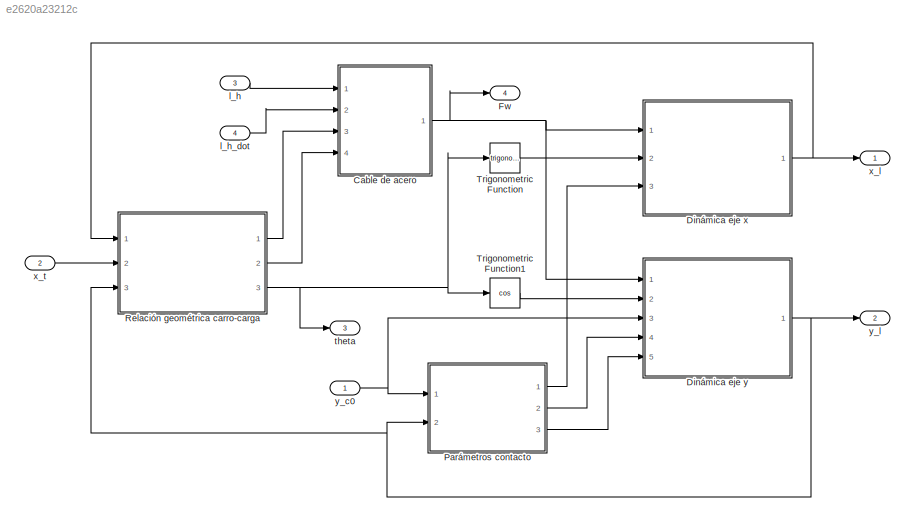
MODEL slx_e2620a23212c
KIND model
CONFIG AbsTol = auto
CONFIG EnableMultiTasking = off
CONFIG FixedStep = auto
CONFIG MaxStep = auto
CONFIG MinStep = auto
CONFIG RelTol = 1e-3
CONFIG SampleTimeConstraint = Unconstrained
CONFIG Solver = VariableStepAuto
CONFIG SolverName = VariableStepAuto
CONFIG StartTime = 0.0
CONFIG StopTime = 10.0
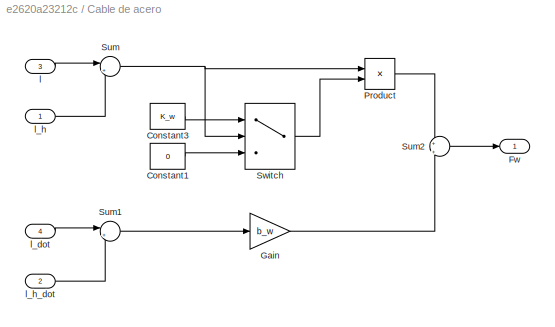
BLOCK [SubSystem] Cable de acero
  Ports = [4, 1]
  RequestExecContextInheritance = off
BLOCK [Constant] Cable de acero/Constant1
  Value = 0
BLOCK [Constant] Cable de acero/Constant3
  Value = K_w
BLOCK [Outport] Cable de acero/Fw
  IconDisplay = Port number
BLOCK [Gain] Cable de acero/Gain
  Gain = b_w
  OutDataTypeStr = Inherit: Inherit via internal rule
  ParamDataTypeStr = Inherit: Inherit via internal rule
  SaturateOnIntegerOverflow = off
BLOCK [Product] Cable de acero/Product
  InputSameDT = off
  OutDataTypeStr = Inherit: Inherit via internal rule
  Ports = [2, 1]
  RndMeth = Floor
  SaturateOnIntegerOverflow = off
BLOCK [Sum] Cable de acero/Sum
  IconShape = round
  InputSameDT = off
  Inputs = |+-
  OutDataTypeStr = Inherit: Inherit via internal rule
  Ports = [2, 1]
  SaturateOnIntegerOverflow = off
BLOCK [Sum] Cable de acero/Sum1
  IconShape = round
  InputSameDT = off
  Inputs = |+-
  OutDataTypeStr = Inherit: Inherit via internal rule
  Ports = [2, 1]
  SaturateOnIntegerOverflow = off
BLOCK [Sum] Cable de acero/Sum2
  IconShape = round
  InputSameDT = off
  Inputs = +|+
  OutDataTypeStr = Inherit: Inherit via internal rule
  Ports = [2, 1]
  SaturateOnIntegerOverflow = off
BLOCK [Switch] Cable de acero/Switch
  InputSameDT = off
  SaturateOnIntegerOverflow = off
BLOCK [Inport] Cable de acero/l
  IconDisplay = Port number
  OutDataTypeStr = double
  Port = 3
  PortDimensions = 1
  SampleTime = 0
  SamplingMode = Sample based
  SignalType = real
BLOCK [Inport] Cable de acero/l_dot
  IconDisplay = Port number
  OutDataTypeStr = double
  Port = 4
  PortDimensions = 1
  SampleTime = 0
  SamplingMode = Sample based
  SignalType = real
BLOCK [Inport] Cable de acero/l_h
  IconDisplay = Port number
  OutDataTypeStr = double
  PortDimensions = 1
  SampleTime = 0
  SamplingMode = Sample based
  SignalType = real
BLOCK [Inport] Cable de acero/l_h_dot
  IconDisplay = Port number
  OutDataTypeStr = double
  Port = 2
  PortDimensions = 1
  SampleTime = 0
  SamplingMode = Sample based
  SignalType = real
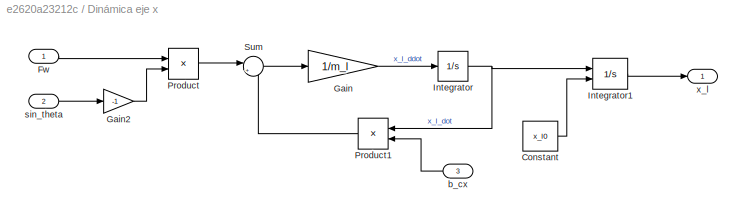
BLOCK [SubSystem] Dinámica eje x
  Ports = [3, 1]
  RequestExecContextInheritance = off
BLOCK [Constant] Dinámica eje x/Constant
  Value = x_l0
BLOCK [Inport] Dinámica eje x/Fw
  IconDisplay = Port number
  OutDataTypeStr = double
  PortDimensions = 1
  SampleTime = 0
  SamplingMode = Sample based
  SignalType = real
BLOCK [Gain] Dinámica eje x/Gain
  Gain = 1/m_l
  OutDataTypeStr = Inherit: Inherit via internal rule
  ParamDataTypeStr = Inherit: Inherit via internal rule
  SaturateOnIntegerOverflow = off
BLOCK [Gain] Dinámica eje x/Gain2
  Gain = -1
  OutDataTypeStr = Inherit: Inherit via internal rule
  ParamDataTypeStr = Inherit: Inherit via internal rule
  SaturateOnIntegerOverflow = off
BLOCK [Integrator] Dinámica eje x/Integrator
  Ports = [1, 1]
BLOCK [Integrator] Dinámica eje x/Integrator1
  InitialConditionSource = external
  Ports = [2, 1]
BLOCK [Product] Dinámica eje x/Product
  InputSameDT = off
  OutDataTypeStr = Inherit: Inherit via internal rule
  Ports = [2, 1]
  RndMeth = Floor
  SaturateOnIntegerOverflow = off
BLOCK [Product] Dinámica eje x/Product1
  InputSameDT = off
  OutDataTypeStr = Inherit: Inherit via internal rule
  Ports = [2, 1]
  RndMeth = Floor
  SaturateOnIntegerOverflow = off
BLOCK [Sum] Dinámica eje x/Sum
  IconShape = round
  InputSameDT = off
  Inputs = |+-
  OutDataTypeStr = Inherit: Inherit via internal rule
  Ports = [2, 1]
  SaturateOnIntegerOverflow = off
BLOCK [Inport] Dinámica eje x/b_cx
  IconDisplay = Port number
  OutDataTypeStr = double
  Port = 3
  PortDimensions = 1
  SampleTime = 0
  SamplingMode = Sample based
  SignalType = real
BLOCK [Inport] Dinámica eje x/sin_theta
  IconDisplay = Port number
  OutDataTypeStr = double
  Port = 2
  PortDimensions = 1
  SampleTime = 0
  SamplingMode = Sample based
  SignalType = real
BLOCK [Outport] Dinámica eje x/x_l
  IconDisplay = Port number
  OutDataTypeStr = double
  PortDimensions = 1
  SampleTime = 0
  SamplingMode = Sample based
  SignalType = real
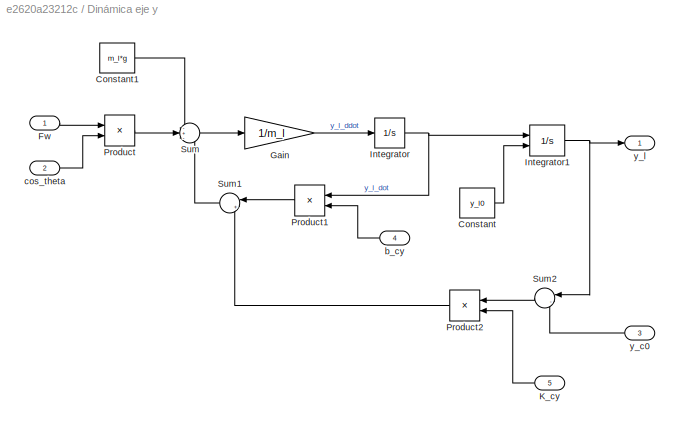
BLOCK [SubSystem] Dinámica eje y
  Ports = [5, 1]
  RequestExecContextInheritance = off
BLOCK [Constant] Dinámica eje y/Constant
  Value = y_l0
BLOCK [Constant] Dinámica eje y/Constant1
  Value = m_l*g
BLOCK [Inport] Dinámica eje y/Fw
  IconDisplay = Port number
  OutDataTypeStr = double
  PortDimensions = 1
  SampleTime = 0
  SamplingMode = Sample based
  SignalType = real
BLOCK [Gain] Dinámica eje y/Gain
  Gain = 1/m_l
  OutDataTypeStr = Inherit: Inherit via internal rule
  ParamDataTypeStr = Inherit: Inherit via internal rule
  SaturateOnIntegerOverflow = off
BLOCK [Integrator] Dinámica eje y/Integrator
  Ports = [1, 1]
BLOCK [Integrator] Dinámica eje y/Integrator1
  InitialConditionSource = external
  Ports = [2, 1]
BLOCK [Inport] Dinámica eje y/K_cy
  IconDisplay = Port number
  OutDataTypeStr = double
  Port = 5
  PortDimensions = 1
  SampleTime = 0
  SamplingMode = Sample based
  SignalType = real
BLOCK [Product] Dinámica eje y/Product
  InputSameDT = off
  OutDataTypeStr = Inherit: Inherit via internal rule
  Ports = [2, 1]
  RndMeth = Floor
  SaturateOnIntegerOverflow = off
BLOCK [Product] Dinámica eje y/Product1
  InputSameDT = off
  OutDataTypeStr = Inherit: Inherit via internal rule
  Ports = [2, 1]
  RndMeth = Floor
  SaturateOnIntegerOverflow = off
BLOCK [Product] Dinámica eje y/Product2
  InputSameDT = off
  OutDataTypeStr = Inherit: Inherit via internal rule
  Ports = [2, 1]
  RndMeth = Floor
  SaturateOnIntegerOverflow = off
BLOCK [Sum] Dinámica eje y/Sum
  IconShape = round
  InputSameDT = off
  Inputs = -+-
  OutDataTypeStr = Inherit: Inherit via internal rule
  Ports = [3, 1]
  SaturateOnIntegerOverflow = off
BLOCK [Sum] Dinámica eje y/Sum1
  IconShape = round
  InputSameDT = off
  Inputs = |+-
  OutDataTypeStr = Inherit: Inherit via internal rule
  Ports = [2, 1]
  SaturateOnIntegerOverflow = off
BLOCK [Sum] Dinámica eje y/Sum2
  IconShape = round
  InputSameDT = off
  Inputs = |-+
  OutDataTypeStr = Inherit: Inherit via internal rule
  Ports = [2, 1]
  SaturateOnIntegerOverflow = off
BLOCK [Inport] Dinámica eje y/b_cy
  IconDisplay = Port number
  OutDataTypeStr = double
  Port = 4
  PortDimensions = 1
  SampleTime = 0
  SamplingMode = Sample based
  SignalType = real
BLOCK [Inport] Dinámica eje y/cos_theta
  IconDisplay = Port number
  OutDataTypeStr = double
  Port = 2
  PortDimensions = 1
  SampleTime = 0
  SamplingMode = Sample based
  SignalType = real
BLOCK [Inport] Dinámica eje y/y_c0
  IconDisplay = Port number
  OutDataTypeStr = double
  Port = 3
  PortDimensions = 1
  SampleTime = 0
  SamplingMode = Sample based
  SignalType = real
BLOCK [Outport] Dinámica eje y/y_l
  IconDisplay = Port number
  OutDataTypeStr = double
  PortDimensions = 1
  SampleTime = 0
  SamplingMode = Sample based
  SignalType = real
BLOCK [Outport] Fw
  IconDisplay = Port number
  OutDataTypeStr = double
  Port = 4
  PortDimensions = 1
  SampleTime = 0
  SamplingMode = Sample based
  SignalType = real
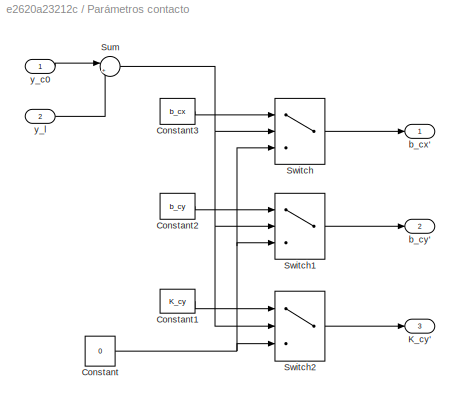
BLOCK [SubSystem] Parámetros contacto
  Ports = [2, 3]
  RequestExecContextInheritance = off
BLOCK [Constant] Parámetros contacto/Constant
  Value = 0
BLOCK [Constant] Parámetros contacto/Constant1
  Value = K_cy
BLOCK [Constant] Parámetros contacto/Constant2
  Value = b_cy
BLOCK [Constant] Parámetros contacto/Constant3
  Value = b_cx
BLOCK [Outport] Parámetros contacto/K_cy'
  IconDisplay = Port number
  OutDataTypeStr = double
  Port = 3
  PortDimensions = 1
  SampleTime = 0
  SamplingMode = Sample based
  SignalType = real
BLOCK [Sum] Parámetros contacto/Sum
  IconShape = round
  InputSameDT = off
  Inputs = |+-
  OutDataTypeStr = Inherit: Inherit via internal rule
  Ports = [2, 1]
  SaturateOnIntegerOverflow = off
BLOCK [Switch] Parámetros contacto/Switch
  InputSameDT = off
  SaturateOnIntegerOverflow = off
BLOCK [Switch] Parámetros contacto/Switch1
  InputSameDT = off
  SaturateOnIntegerOverflow = off
BLOCK [Switch] Parámetros contacto/Switch2
  InputSameDT = off
  SaturateOnIntegerOverflow = off
BLOCK [Outport] Parámetros contacto/b_cx'
  IconDisplay = Port number
  OutDataTypeStr = double
  PortDimensions = 1
  SampleTime = 0
  SamplingMode = Sample based
  SignalType = real
BLOCK [Outport] Parámetros contacto/b_cy'
  IconDisplay = Port number
  OutDataTypeStr = double
  Port = 2
  PortDimensions = 1
  SampleTime = 0
  SamplingMode = Sample based
  SignalType = real
BLOCK [Inport] Parámetros contacto/y_c0
  IconDisplay = Port number
  OutDataTypeStr = double
  PortDimensions = 1
  SampleTime = 0
  SamplingMode = Sample based
  SignalType = real
BLOCK [Inport] Parámetros contacto/y_l
  IconDisplay = Port number
  OutDataTypeStr = double
  Port = 2
  PortDimensions = 1
  SampleTime = 0
  SamplingMode = Sample based
  SignalType = real
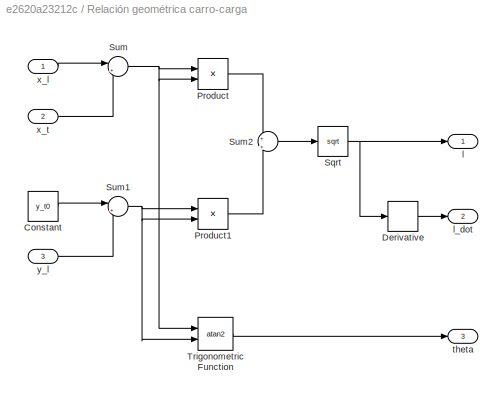
BLOCK [SubSystem] Relación geométrica carro-carga
  Ports = [3, 3]
  RequestExecContextInheritance = off
BLOCK [Constant] Relación geométrica carro-carga/Constant
  Value = y_t0
BLOCK [Derivative] Relación geométrica carro-carga/Derivative
BLOCK [Product] Relación geométrica carro-carga/Product
  InputSameDT = off
  OutDataTypeStr = Inherit: Inherit via internal rule
  Ports = [2, 1]
  RndMeth = Floor
  SaturateOnIntegerOverflow = off
BLOCK [Product] Relación geométrica carro-carga/Product1
  InputSameDT = off
  OutDataTypeStr = Inherit: Inherit via internal rule
  Ports = [2, 1]
  RndMeth = Floor
  SaturateOnIntegerOverflow = off
BLOCK [Sqrt] Relación geométrica carro-carga/Sqrt
BLOCK [Sum] Relación geométrica carro-carga/Sum
  IconShape = round
  InputSameDT = off
  Inputs = |+-
  OutDataTypeStr = Inherit: Inherit via internal rule
  Ports = [2, 1]
  SaturateOnIntegerOverflow = off
BLOCK [Sum] Relación geométrica carro-carga/Sum1
  IconShape = round
  InputSameDT = off
  Inputs = |+-
  OutDataTypeStr = Inherit: Inherit via internal rule
  Ports = [2, 1]
  SaturateOnIntegerOverflow = off
BLOCK [Sum] Relación geométrica carro-carga/Sum2
  IconShape = round
  InputSameDT = off
  Inputs = +|+
  OutDataTypeStr = Inherit: Inherit via internal rule
  Ports = [2, 1]
  SaturateOnIntegerOverflow = off
BLOCK [Trigonometry] Relación geométrica carro-carga/Trigonometric Function
  Operator = atan2
  Ports = [2, 1]
BLOCK [Outport] Relación geométrica carro-carga/l
  IconDisplay = Port number
BLOCK [Outport] Relación geométrica carro-carga/l_dot
  IconDisplay = Port number
  Port = 2
BLOCK [Outport] Relación geométrica carro-carga/theta
  IconDisplay = Port number
  Port = 3
BLOCK [Inport] Relación geométrica carro-carga/x_l
  IconDisplay = Port number
BLOCK [Inport] Relación geométrica carro-carga/x_t
  IconDisplay = Port number
  Port = 2
BLOCK [Inport] Relación geométrica carro-carga/y_l
  IconDisplay = Port number
  Port = 3
BLOCK [Trigonometry] Trigonometric Function
  Ports = [1, 1]
BLOCK [Trigonometry] Trigonometric Function1
  Operator = cos
  Ports = [1, 1]
BLOCK [Inport] l_h
  IconDisplay = Port number
  OutDataTypeStr = double
  Port = 3
  PortDimensions = 1
  SampleTime = 0
  SamplingMode = Sample based
  SignalType = real
BLOCK [Inport] l_h_dot
  IconDisplay = Port number
  OutDataTypeStr = double
  Port = 4
  PortDimensions = 1
  SampleTime = 0
  SamplingMode = Sample based
  SignalType = real
BLOCK [Outport] theta
  IconDisplay = Port number
  OutDataTypeStr = double
  Port = 3
  PortDimensions = 1
  SampleTime = 0
  SamplingMode = Sample based
  SignalType = real
BLOCK [Outport] x_l
  IconDisplay = Port number
  OutDataTypeStr = double
  PortDimensions = 1
  SampleTime = 0
  SamplingMode = Sample based
  SignalType = real
BLOCK [Inport] x_t
  IconDisplay = Port number
  OutDataTypeStr = double
  Port = 2
  PortDimensions = 1
  SampleTime = 0
  SamplingMode = Sample based
  SignalType = real
BLOCK [Inport] y_c0
  IconDisplay = Port number
  OutDataTypeStr = double
  PortDimensions = 1
  SampleTime = 0
  SamplingMode = Sample based
  SignalType = real
BLOCK [Outport] y_l
  IconDisplay = Port number
  OutDataTypeStr = double
  Port = 2
  PortDimensions = 1
  SampleTime = 0
  SamplingMode = Sample based
  SignalType = real
LINE Cable de acero/Constant1:1 -> Cable de acero/Switch:3
LINE Cable de acero/Constant3:1 -> Cable de acero/Switch:1
LINE Cable de acero/Gain:1 -> Cable de acero/Sum2:2
LINE Cable de acero/Product:1 -> Cable de acero/Sum2:1
LINE Cable de acero/Sum1:1 -> Cable de acero/Gain:1
LINE Cable de acero/Sum2:1 -> Cable de acero/Fw:1
NET Cable de acero/Sum:1 -> Cable de acero/Product:1, Cable de acero/Switch:2
LINE Cable de acero/Switch:1 -> Cable de acero/Product:2
LINE Cable de acero/l:1 -> Cable de acero/Sum:1
LINE Cable de acero/l_dot:1 -> Cable de acero/Sum1:1
LINE Cable de acero/l_h:1 -> Cable de acero/Sum:2
LINE Cable de acero/l_h_dot:1 -> Cable de acero/Sum1:2
NET Cable de acero:1 -> Dinámica eje x:1, Dinámica eje y:1, Fw:1
LINE Dinámica eje x/Constant:1 -> Dinámica eje x/Integrator1:2
LINE Dinámica eje x/Fw:1 -> Dinámica eje x/Product:1
LINE Dinámica eje x/Gain2:1 -> Dinámica eje x/Product:2
LINE Dinámica eje x/Gain:1 -> Dinámica eje x/Integrator:1
LINE Dinámica eje x/Integrator1:1 -> Dinámica eje x/x_l:1
NET Dinámica eje x/Integrator:1 -> Dinámica eje x/Integrator1:1, Dinámica eje x/Product1:1
LINE Dinámica eje x/Product1:1 -> Dinámica eje x/Sum:2
LINE Dinámica eje x/Product:1 -> Dinámica eje x/Sum:1
LINE Dinámica eje x/Sum:1 -> Dinámica eje x/Gain:1
LINE Dinámica eje x/b_cx:1 -> Dinámica eje x/Product1:2
LINE Dinámica eje x/sin_theta:1 -> Dinámica eje x/Gain2:1
NET Dinámica eje x:1 -> Relación geométrica carro-carga:1, x_l:1
LINE Dinámica eje y/Constant1:1 -> Dinámica eje y/Sum:1
LINE Dinámica eje y/Constant:1 -> Dinámica eje y/Integrator1:2
LINE Dinámica eje y/Fw:1 -> Dinámica eje y/Product:1
LINE Dinámica eje y/Gain:1 -> Dinámica eje y/Integrator:1
NET Dinámica eje y/Integrator1:1 -> Dinámica eje y/Sum2:1, Dinámica eje y/y_l:1
NET Dinámica eje y/Integrator:1 -> Dinámica eje y/Integrator1:1, Dinámica eje y/Product1:1
LINE Dinámica eje y/K_cy:1 -> Dinámica eje y/Product2:2
LINE Dinámica eje y/Product1:1 -> Dinámica eje y/Sum1:1
LINE Dinámica eje y/Product2:1 -> Dinámica eje y/Sum1:2
LINE Dinámica eje y/Product:1 -> Dinámica eje y/Sum:2
LINE Dinámica eje y/Sum1:1 -> Dinámica eje y/Sum:3
LINE Dinámica eje y/Sum2:1 -> Dinámica eje y/Product2:1
LINE Dinámica eje y/Sum:1 -> Dinámica eje y/Gain:1
LINE Dinámica eje y/b_cy:1 -> Dinámica eje y/Product1:2
LINE Dinámica eje y/cos_theta:1 -> Dinámica eje y/Product:2
LINE Dinámica eje y/y_c0:1 -> Dinámica eje y/Sum2:2
NET Dinámica eje y:1 -> Parámetros contacto:2, Relación geométrica carro-carga:3, y_l:1
LINE Parámetros contacto/Constant1:1 -> Parámetros contacto/Switch2:1
LINE Parámetros contacto/Constant2:1 -> Parámetros contacto/Switch1:1
LINE Parámetros contacto/Constant3:1 -> Parámetros contacto/Switch:1
NET Parámetros contacto/Constant:1 -> Parámetros contacto/Switch1:3, Parámetros contacto/Switch2:3, Parámetros contacto/Switch:3
NET Parámetros contacto/Sum:1 -> Parámetros contacto/Switch1:2, Parámetros contacto/Switch2:2, Parámetros contacto/Switch:2
LINE Parámetros contacto/Switch1:1 -> Parámetros contacto/b_cy':1
LINE Parámetros contacto/Switch2:1 -> Parámetros contacto/K_cy':1
LINE Parámetros contacto/Switch:1 -> Parámetros contacto/b_cx':1
LINE Parámetros contacto/y_c0:1 -> Parámetros contacto/Sum:1
LINE Parámetros contacto/y_l:1 -> Parámetros contacto/Sum:2
LINE Parámetros contacto:1 -> Dinámica eje x:3
LINE Parámetros contacto:2 -> Dinámica eje y:4
LINE Parámetros contacto:3 -> Dinámica eje y:5
LINE Relación geométrica carro-carga/Constant:1 -> Relación geométrica carro-carga/Sum1:1
LINE Relación geométrica carro-carga/Derivative:1 -> Relación geométrica carro-carga/l_dot:1
LINE Relación geométrica carro-carga/Product1:1 -> Relación geométrica carro-carga/Sum2:2
LINE Relación geométrica carro-carga/Product:1 -> Relación geométrica carro-carga/Sum2:1
NET Relación geométrica carro-carga/Sqrt:1 -> Relación geométrica carro-carga/Derivative:1, Relación geométrica carro-carga/l:1
NET Relación geométrica carro-carga/Sum1:1 -> Relación geométrica carro-carga/Product1:1, Relación geométrica carro-carga/Product1:2, Relación geométrica carro-carga/Trigonometric Function:2
LINE Relación geométrica carro-carga/Sum2:1 -> Relación geométrica carro-carga/Sqrt:1
NET Relación geométrica carro-carga/Sum:1 -> Relación geométrica carro-carga/Product:1, Relación geométrica carro-carga/Product:2, Relación geométrica carro-carga/Trigonometric Function:1
LINE Relación geométrica carro-carga/Trigonometric Function:1 -> Relación geométrica carro-carga/theta:1
LINE Relación geométrica carro-carga/x_l:1 -> Relación geométrica carro-carga/Sum:1
LINE Relación geométrica carro-carga/x_t:1 -> Relación geométrica carro-carga/Sum:2
LINE Relación geométrica carro-carga/y_l:1 -> Relación geométrica carro-carga/Sum1:2
LINE Relación geométrica carro-carga:1 -> Cable de acero:3
LINE Relación geométrica carro-carga:2 -> Cable de acero:4
NET Relación geométrica carro-carga:3 -> Trigonometric Function1:1, Trigonometric Function:1, theta:1
LINE Trigonometric Function1:1 -> Dinámica eje y:2
LINE Trigonometric Function:1 -> Dinámica eje x:2
LINE l_h:1 -> Cable de acero:1
LINE l_h_dot:1 -> Cable de acero:2
LINE x_t:1 -> Relación geométrica carro-carga:2
NET y_c0:1 -> Dinámica eje y:3, Parámetros contacto:1
note: NET lines group one-source signal fan-out (src -> all destinations, sorted); 1:1 wires keep LINE
